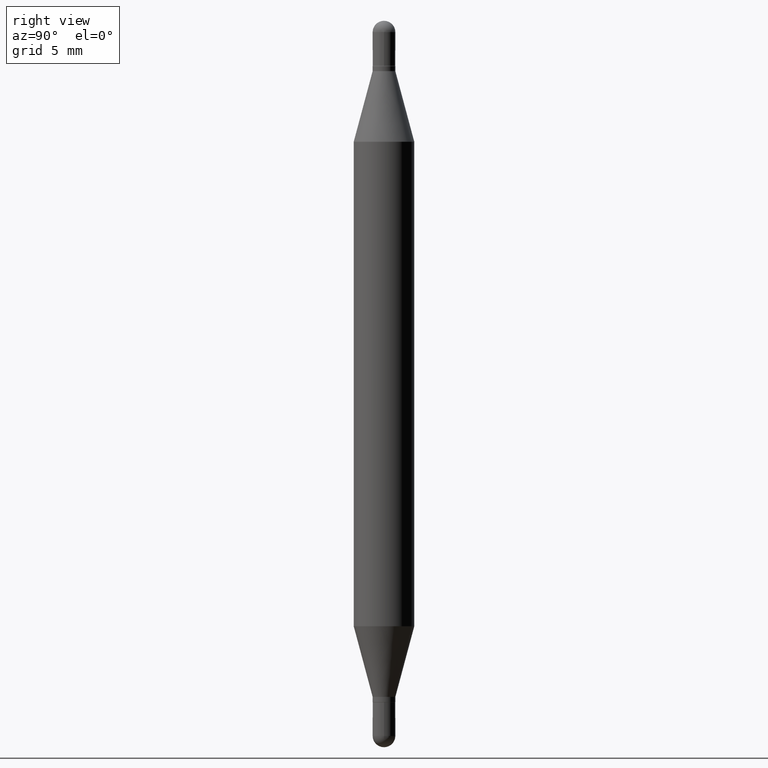
[diagram: clean part render]
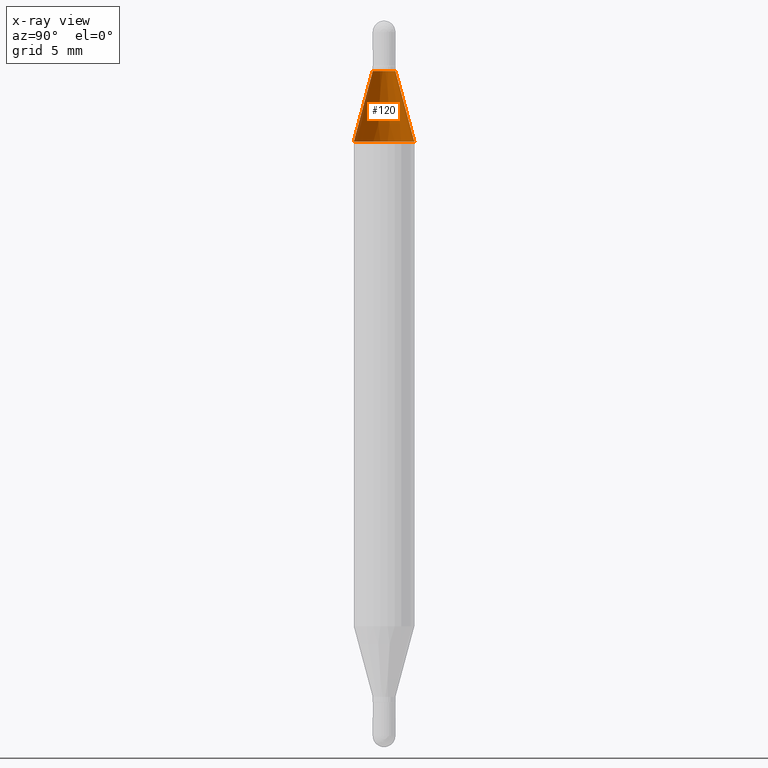
[diagram: x-ray — body ghosted, one internal face saturated and labeled with its STEP entity id]
A machine part, right view, then the same camera in x-ray: the body is ghosted and one INTERNAL B-rep face — a face not visible from any outside direction — is saturated and labeled: STEP entity #120.
In plain terms, the highlighted conical surface has half-angle 15 deg.
Its self-contained STEP definition (entity closure, byte-faithful):
#43 = VECTOR ( 'NONE', #55, 39.37007874015748143 ) ;
#52 = VERTEX_POINT ( 'NONE', #277 ) ;
#55 = DIRECTION ( 'NONE',  ( -1.807323732225329745E-15, -0.2588190451025249028, -0.9659258262890670910 ) ) ;
#81 = VERTEX_POINT ( 'NONE', #88 ) ;
#84 = FACE_OUTER_BOUND ( 'NONE', #171, .T. ) ;
#88 = CARTESIAN_POINT ( 'NONE',  ( 1.608786780477761424E-16, 0.02344999999999955106, -0.1039999999999995789 ) ) ;
#112 = EDGE_CURVE ( 'NONE', #81, #210, #1034, .T. ) ;
#120 = ADVANCED_FACE ( 'NONE', ( #84 ), #972, .T. ) ;
#142 = AXIS2_PLACEMENT_3D ( 'NONE', #175, #747, #1108 ) ;
#171 = EDGE_LOOP ( 'NONE', ( #636, #218, #552, #1053 ) ) ;
#175 = CARTESIAN_POINT ( 'NONE',  ( 3.413549643967419566E-29, -3.712452041084765820E-16, -0.1039999999999994956 ) ) ;
#197 = CARTESIAN_POINT ( 'NONE',  ( 3.057189282543616555E-29, -8.783037710192168733E-16, -0.2497365840355639799 ) ) ;
#210 = VERTEX_POINT ( 'NONE', #1117 ) ;
#218 = ORIENTED_EDGE ( 'NONE', *, *, #112, .T. ) ;
#234 = AXIS2_PLACEMENT_3D ( 'NONE', #197, #704, #793 ) ;
#241 = CARTESIAN_POINT ( 'NONE',  ( -1.637504747917082906E-16, -0.02345000000000029353, -0.1039999999999994124 ) ) ;
#259 = DIRECTION ( 'NONE',  ( 2.445236134647148401E-29, 3.479281268092587751E-15, 1.000000000000000000 ) ) ;
#277 = CARTESIAN_POINT ( 'NONE',  ( -4.364351673553611010E-16, -0.06250000000000087430, -0.2497365840355637856 ) ) ;
#382 = EDGE_CURVE ( 'NONE', #210, #52, #893, .T. ) ;
#401 = CARTESIAN_POINT ( 'NONE',  ( -1.637504747917082906E-16, -0.02345000000000029353, -0.1039999999999994124 ) ) ;
#460 = VERTEX_POINT ( 'NONE', #401 ) ;
#461 = VECTOR ( 'NONE', #763, 39.37007874015748143 ) ;
#474 = EDGE_CURVE ( 'NONE', #460, #52, #651, .T. ) ;
#552 = ORIENTED_EDGE ( 'NONE', *, *, #382, .T. ) ;
#585 = EDGE_CURVE ( 'NONE', #81, #460, #661, .T. ) ;
#636 = ORIENTED_EDGE ( 'NONE', *, *, #585, .F. ) ;
#651 = LINE ( 'NONE', #241, #43 ) ;
#661 = CIRCLE ( 'NONE', #1020, 0.02344999999999992230 ) ;
#704 = DIRECTION ( 'NONE',  ( 2.445236134647148401E-29, 3.479281268092587751E-15, 1.000000000000000000 ) ) ;
#747 = DIRECTION ( 'NONE',  ( -2.445236134647148401E-29, -3.479281268092587751E-15, -1.000000000000000000 ) ) ;
#763 = DIRECTION ( 'NONE',  ( 1.775627540710964511E-15, 0.2588190451025181305, -0.9659258262890689783 ) ) ;
#793 = DIRECTION ( 'NONE',  ( -6.982962677686265922E-15, -1.000000000000000000, 3.278217592397115862E-15 ) ) ;
#862 = DIRECTION ( 'NONE',  ( -6.982962677686266711E-15, -1.000000000000000000, 3.640522379616567654E-15 ) ) ;
#893 = CIRCLE ( 'NONE', #234, 0.06250000000000000000 ) ;
#947 = CARTESIAN_POINT ( 'NONE',  ( 1.608786780477759945E-16, 0.02344999999999955106, -0.1039999999999995789 ) ) ;
#972 = CONICAL_SURFACE ( 'NONE', #142, 0.02344999999999992230, 0.2617993877991502405 ) ;
#1020 = AXIS2_PLACEMENT_3D ( 'NONE', #1032, #259, #862 ) ;
#1032 = CARTESIAN_POINT ( 'NONE',  ( 3.413549643967419566E-29, -3.712452041084765820E-16, -0.1039999999999994956 ) ) ;
#1034 = LINE ( 'NONE', #947, #461 ) ;
#1053 = ORIENTED_EDGE ( 'NONE', *, *, #474, .F. ) ;
#1108 = DIRECTION ( 'NONE',  ( -6.982962677686266711E-15, -1.000000000000000000, 3.640522379616567654E-15 ) ) ;
#1117 = CARTESIAN_POINT ( 'NONE',  ( 4.287811248607511924E-16, 0.06249999999999911876, -0.2497365840355641742 ) ) ;